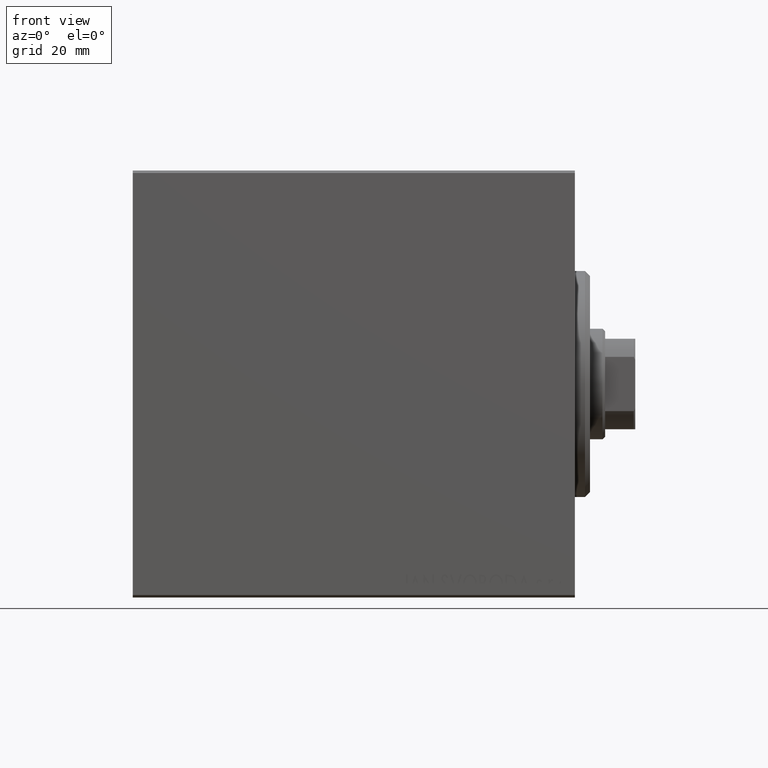
[diagram: clean part render]
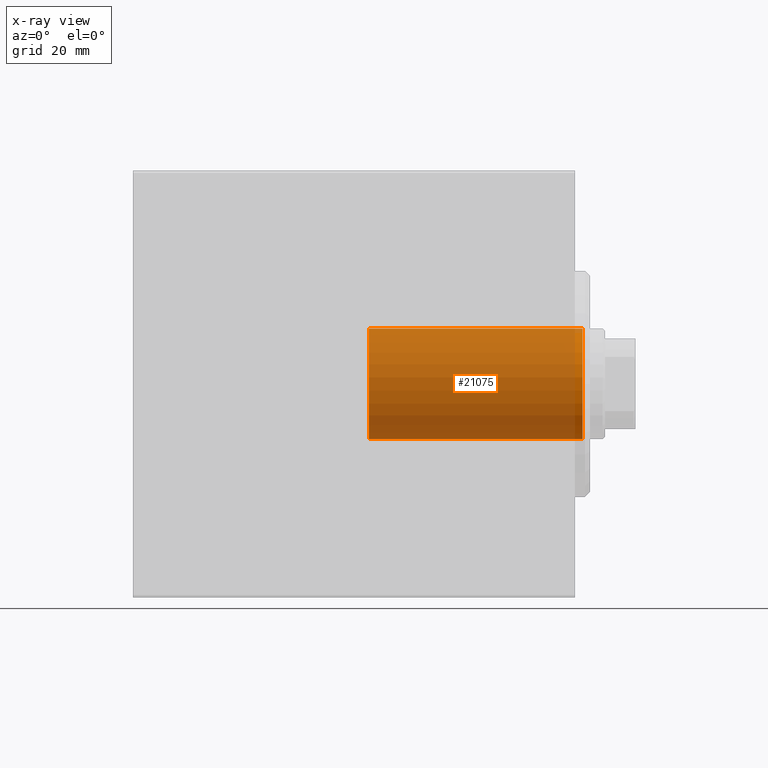
[diagram: x-ray — body ghosted, one internal face saturated and labeled with its STEP entity id]
A machine part, front view, then the same camera in x-ray: the body is ghosted and one INTERNAL B-rep face — a face not visible from any outside direction — is saturated and labeled: STEP entity #21075.
In plain terms, the highlighted cylindrical surface (partial cylindrical patch) has radius 11 mm, axis along (1, 0, 0).
Its self-contained STEP definition (entity closure, byte-faithful):
#45 = CARTESIAN_POINT ( 'NONE',  ( -40.99999999999999289, 0.000000000000000000, 0.000000000000000000 ) ) ;
#1582 = EDGE_LOOP ( 'NONE', ( #41968, #28889, #9960, #36087 ) ) ;
#1709 = EDGE_CURVE ( 'NONE', #39667, #3311, #27113, .T. ) ;
#3311 = VERTEX_POINT ( 'NONE', #28986 ) ;
#5292 = LINE ( 'NONE', #11621, #14725 ) ;
#6272 = FACE_OUTER_BOUND ( 'NONE', #1582, .T. ) ;
#9354 = VERTEX_POINT ( 'NONE', #17698 ) ;
#9960 = ORIENTED_EDGE ( 'NONE', *, *, #1709, .T. ) ;
#11621 = CARTESIAN_POINT ( 'NONE',  ( -40.99999999999999289, 0.000000000000000000, -11.00000000000000000 ) ) ;
#12989 = EDGE_CURVE ( 'NONE', #40676, #9354, #38844, .T. ) ;
#13218 = LINE ( 'NONE', #20207, #35220 ) ;
#13487 = DIRECTION ( 'NONE',  ( 1.000000000000000000, -0.000000000000000000, -0.000000000000000000 ) ) ;
#14360 = AXIS2_PLACEMENT_3D ( 'NONE', #45, #27550, #24163 ) ;
#14725 = VECTOR ( 'NONE', #39128, 1000.000000000000000 ) ;
#16055 = DIRECTION ( 'NONE',  ( 0.000000000000000000, 0.000000000000000000, -1.000000000000000000 ) ) ;
#17698 = CARTESIAN_POINT ( 'NONE',  ( -40.99999999999999289, 0.000000000000000000, -11.00000000000000000 ) ) ;
#20015 = CYLINDRICAL_SURFACE ( 'NONE', #33160, 11.00000000000000000 ) ;
#20207 = CARTESIAN_POINT ( 'NONE',  ( -40.99999999999999289, 1.347111479062088405E-15, 11.00000000000000000 ) ) ;
#21075 = ADVANCED_FACE ( 'NONE', ( #6272 ), #20015, .F. ) ;
#24163 = DIRECTION ( 'NONE',  ( 0.000000000000000000, 0.000000000000000000, -1.000000000000000000 ) ) ;
#25040 = EDGE_CURVE ( 'NONE', #9354, #3311, #5292, .T. ) ;
#27113 = CIRCLE ( 'NONE', #42248, 11.00000000000000000 ) ;
#27550 = DIRECTION ( 'NONE',  ( 1.000000000000000000, 0.000000000000000000, 0.000000000000000000 ) ) ;
#28889 = ORIENTED_EDGE ( 'NONE', *, *, #42790, .T. ) ;
#28986 = CARTESIAN_POINT ( 'NONE',  ( 1.500000000000001332, 0.000000000000000000, -11.00000000000000000 ) ) ;
#33160 = AXIS2_PLACEMENT_3D ( 'NONE', #41433, #13487, #34450 ) ;
#34412 = DIRECTION ( 'NONE',  ( 1.000000000000000000, -0.000000000000000000, -0.000000000000000000 ) ) ;
#34450 = DIRECTION ( 'NONE',  ( 0.000000000000000000, 0.000000000000000000, -1.000000000000000000 ) ) ;
#35220 = VECTOR ( 'NONE', #34412, 1000.000000000000000 ) ;
#36087 = ORIENTED_EDGE ( 'NONE', *, *, #25040, .F. ) ;
#37472 = DIRECTION ( 'NONE',  ( 1.000000000000000000, 0.000000000000000000, 0.000000000000000000 ) ) ;
#38844 = CIRCLE ( 'NONE', #14360, 11.00000000000000000 ) ;
#38954 = CARTESIAN_POINT ( 'NONE',  ( 1.500000000000001332, 1.347111479062088405E-15, 11.00000000000000000 ) ) ;
#39128 = DIRECTION ( 'NONE',  ( 1.000000000000000000, -0.000000000000000000, -0.000000000000000000 ) ) ;
#39667 = VERTEX_POINT ( 'NONE', #38954 ) ;
#40451 = CARTESIAN_POINT ( 'NONE',  ( -40.99999999999999289, 1.347111479062088405E-15, 11.00000000000000000 ) ) ;
#40676 = VERTEX_POINT ( 'NONE', #40451 ) ;
#40844 = CARTESIAN_POINT ( 'NONE',  ( 1.500000000000001332, 0.000000000000000000, 0.000000000000000000 ) ) ;
#41433 = CARTESIAN_POINT ( 'NONE',  ( -40.99999999999999289, 0.000000000000000000, 0.000000000000000000 ) ) ;
#41968 = ORIENTED_EDGE ( 'NONE', *, *, #12989, .F. ) ;
#42248 = AXIS2_PLACEMENT_3D ( 'NONE', #40844, #37472, #16055 ) ;
#42790 = EDGE_CURVE ( 'NONE', #40676, #39667, #13218, .T. ) ;